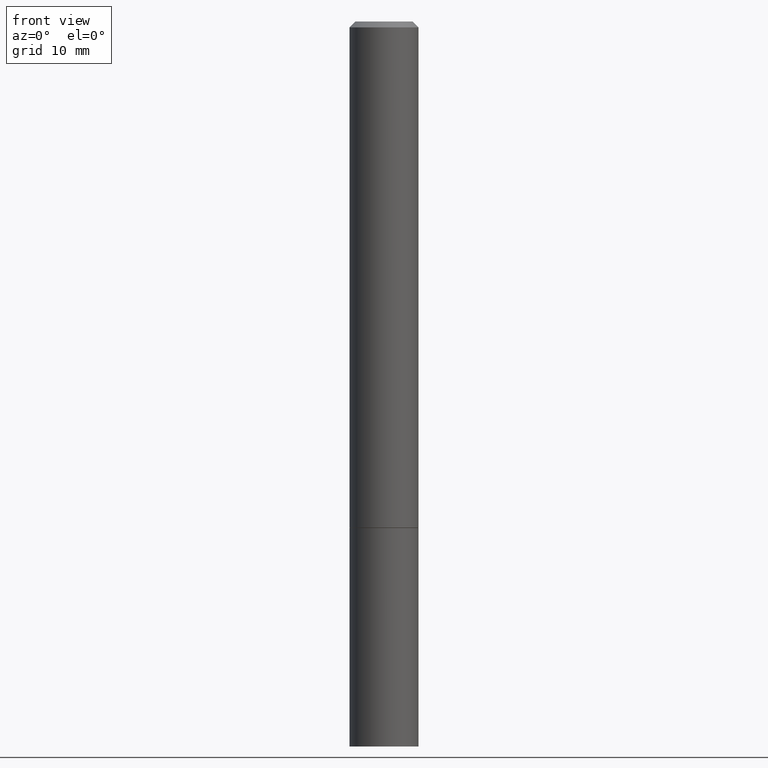
[diagram: clean part render]
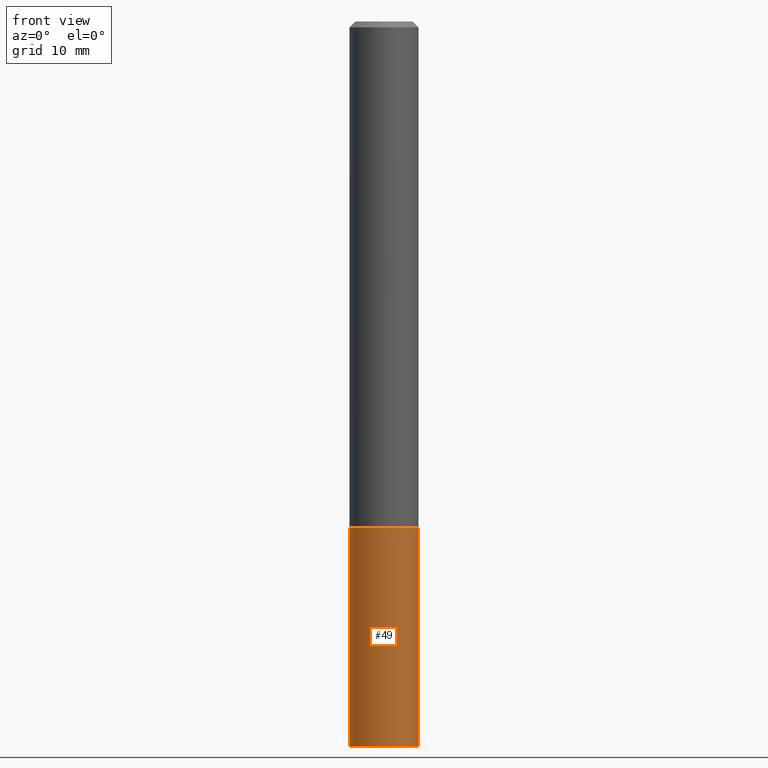
[diagram: same view with one face highlighted and labeled with its STEP entity id]
A machine part, front view. The second image highlights one B-rep face of the part: STEP entity #49.
In plain terms, the highlighted cylindrical surface (edge-blend (fillet) strip) has radius 2.9997 mm, axis along (-0, 0, 1).
Its self-contained STEP definition (entity closure, byte-faithful):
#5 = DIRECTION ( 'NONE',  ( 1.000000000000000000, -6.982962677686266711E-15, 4.876176775795935793E-29 ) ) ;
#6 = CARTESIAN_POINT ( 'NONE',  ( 0.1181000000000000383, -9.484609056967403598E-15, -2.480300000000000171 ) ) ;
#20 = EDGE_CURVE ( 'NONE', #307, #296, #280, .T. ) ;
#41 = CARTESIAN_POINT ( 'NONE',  ( -0.1181000000000000383, -6.514956173072641193E-15, -1.732300000000000617 ) ) ;
#42 = EDGE_CURVE ( 'NONE', #296, #311, #321, .T. ) ;
#49 = ADVANCED_FACE ( 'NONE', ( #53 ), #145, .T. ) ;
#53 = FACE_OUTER_BOUND ( 'NONE', #195, .T. ) ;
#70 = CARTESIAN_POINT ( 'NONE',  ( 0.1181000000000000383, -6.872981015512730918E-15, -1.732300000000000617 ) ) ;
#89 = ORIENTED_EDGE ( 'NONE', *, *, #20, .T. ) ;
#97 = AXIS2_PLACEMENT_3D ( 'NONE', #191, #286, #116 ) ;
#98 = CARTESIAN_POINT ( 'NONE',  ( -0.1181000000000000383, -6.514956173072641193E-15, -2.480300000000000171 ) ) ;
#103 = AXIS2_PLACEMENT_3D ( 'NONE', #323, #267, #176 ) ;
#116 = DIRECTION ( 'NONE',  ( 1.000000000000000000, -6.982962677686270655E-15, 0.000000000000000000 ) ) ;
#145 = CYLINDRICAL_SURFACE ( 'NONE', #252, 0.1181000000000000383 ) ;
#159 = DIRECTION ( 'NONE',  ( -2.445468806185136877E-29, 3.491481338843145188E-15, 1.000000000000000000 ) ) ;
#161 = LINE ( 'NONE', #287, #356 ) ;
#176 = DIRECTION ( 'NONE',  ( 1.000000000000000000, -6.982962677686262766E-15, 0.000000000000000000 ) ) ;
#191 = CARTESIAN_POINT ( 'NONE',  ( 6.065496279980994755E-29, -8.659921164732655335E-15, -2.480300000000000171 ) ) ;
#195 = EDGE_LOOP ( 'NONE', ( #312, #89, #238, #228 ) ) ;
#197 = VECTOR ( 'NONE', #209, 39.37007874015748143 ) ;
#209 = DIRECTION ( 'NONE',  ( -2.445468806185136877E-29, 3.491481338843145188E-15, 1.000000000000000000 ) ) ;
#212 = CARTESIAN_POINT ( 'NONE',  ( 0.1181000000000000383, -8.246878922347483612E-16, 5.758764772215001842E-30 ) ) ;
#228 = ORIENTED_EDGE ( 'NONE', *, *, #302, .F. ) ;
#238 = ORIENTED_EDGE ( 'NONE', *, *, #42, .T. ) ;
#245 = CIRCLE ( 'NONE', #103, 0.1181000000000000383 ) ;
#252 = AXIS2_PLACEMENT_3D ( 'NONE', #324, #327, #5 ) ;
#267 = DIRECTION ( 'NONE',  ( -2.445468806185136597E-29, 3.491481338843145583E-15, 1.000000000000000000 ) ) ;
#280 = CIRCLE ( 'NONE', #97, 0.1181000000000000383 ) ;
#286 = DIRECTION ( 'NONE',  ( -2.445468806185136597E-29, 3.491481338843145583E-15, 1.000000000000000000 ) ) ;
#287 = CARTESIAN_POINT ( 'NONE',  ( -0.1181000000000000383, 8.391509709326785915E-16, -5.809262341591045886E-30 ) ) ;
#296 = VERTEX_POINT ( 'NONE', #6 ) ;
#302 = EDGE_CURVE ( 'NONE', #353, #311, #245, .T. ) ;
#307 = VERTEX_POINT ( 'NONE', #98 ) ;
#311 = VERTEX_POINT ( 'NONE', #70 ) ;
#312 = ORIENTED_EDGE ( 'NONE', *, *, #317, .F. ) ;
#317 = EDGE_CURVE ( 'NONE', #307, #353, #161, .T. ) ;
#321 = LINE ( 'NONE', #212, #197 ) ;
#323 = CARTESIAN_POINT ( 'NONE',  ( 4.236285612954513513E-29, -6.048293123277983445E-15, -1.732300000000000617 ) ) ;
#324 = CARTESIAN_POINT ( 'NONE',  ( 0.000000000000000000, 0.000000000000000000, 0.000000000000000000 ) ) ;
#327 = DIRECTION ( 'NONE',  ( -2.445468806185136597E-29, 3.491481338843145583E-15, 1.000000000000000000 ) ) ;
#353 = VERTEX_POINT ( 'NONE', #41 ) ;
#356 = VECTOR ( 'NONE', #159, 39.37007874015748143 ) ;